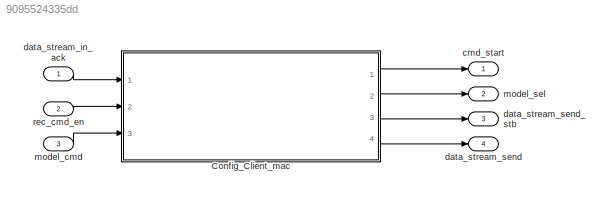
MODEL slx_9095524335dd
KIND model
CONFIG AbsTol = auto
CONFIG FixedStep = auto
CONFIG MaxStep = auto
CONFIG MinStep = auto
CONFIG RelTol = 1e-3
CONFIG SampleTimeConstraint = Unconstrained
CONFIG Solver = VariableStepAuto
CONFIG SolverMode = Auto
CONFIG SolverName = VariableStepAuto
CONFIG StartTime = 0.0
CONFIG StopTime = 10.0
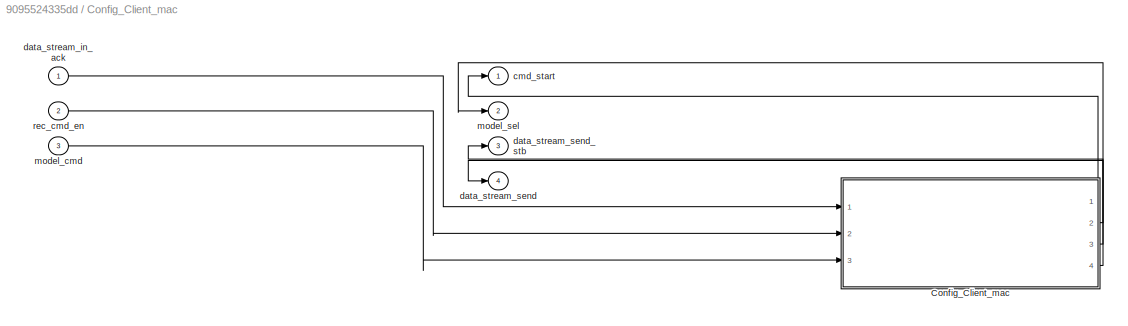
BLOCK [SubSystem] Config_Client_mac
  Ports = [3, 4]
  RequestExecContextInheritance = off
  Variant = off
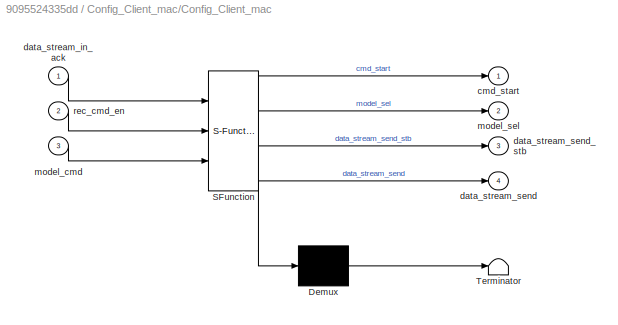
BLOCK [SubSystem] Config_Client_mac/Config_Client_mac
  ErrorFcn = Stateflow.Translate.translate
  PermitHierarchicalResolution = ExplicitOnly
  Ports = [3, 4]
  RequestExecContextInheritance = off
  SFBlockType = Chart
  TreatAsAtomicUnit = on
  Variant = off
BLOCK [Demux] Config_Client_mac/Config_Client_mac/ Demux 
  Outputs = 1
  Ports = [1, 1]
BLOCK [S-Function] Config_Client_mac/Config_Client_mac/ SFunction 
  EnableBusSupport = on
  FunctionName = sf_sfun
  PortCounts = [3 5]
  Ports = [3, 5]
  SFunctionDeploymentMode = off
  Tag = Stateflow S-Function gm_Config_Client 3
BLOCK [Terminator] Config_Client_mac/Config_Client_mac/ Terminator 
BLOCK [Outport] Config_Client_mac/Config_Client_mac/cmd_start
  IconDisplay = Port number
BLOCK [Inport] Config_Client_mac/Config_Client_mac/data_stream_in_ack
  IconDisplay = Port number
BLOCK [Outport] Config_Client_mac/Config_Client_mac/data_stream_send
  IconDisplay = Port number
  Port = 4
BLOCK [Outport] Config_Client_mac/Config_Client_mac/data_stream_send_stb
  IconDisplay = Port number
  Port = 3
BLOCK [Inport] Config_Client_mac/Config_Client_mac/model_cmd
  IconDisplay = Port number
  Port = 3
BLOCK [Outport] Config_Client_mac/Config_Client_mac/model_sel
  IconDisplay = Port number
  Port = 2
BLOCK [Inport] Config_Client_mac/Config_Client_mac/rec_cmd_en
  IconDisplay = Port number
  Port = 2
BLOCK [Outport] Config_Client_mac/cmd_start
  IconDisplay = Port number
BLOCK [Inport] Config_Client_mac/data_stream_in_ack
  IconDisplay = Port number
  SampleTime = 0
BLOCK [Outport] Config_Client_mac/data_stream_send
  IconDisplay = Port number
  Port = 4
BLOCK [Outport] Config_Client_mac/data_stream_send_stb
  IconDisplay = Port number
  Port = 3
BLOCK [Inport] Config_Client_mac/model_cmd
  IconDisplay = Port number
  Port = 3
  SampleTime = 0
BLOCK [Outport] Config_Client_mac/model_sel
  IconDisplay = Port number
  Port = 2
BLOCK [Inport] Config_Client_mac/rec_cmd_en
  IconDisplay = Port number
  Port = 2
  SampleTime = 0
BLOCK [Outport] cmd_start
  IconDisplay = Port number
BLOCK [Inport] data_stream_in_ack
  IconDisplay = Port number
  SampleTime = 0
BLOCK [Outport] data_stream_send
  IconDisplay = Port number
  Port = 4
BLOCK [Outport] data_stream_send_stb
  IconDisplay = Port number
  Port = 3
BLOCK [Inport] model_cmd
  IconDisplay = Port number
  Port = 3
  SampleTime = 0
BLOCK [Outport] model_sel
  IconDisplay = Port number
  Port = 2
BLOCK [Inport] rec_cmd_en
  IconDisplay = Port number
  Port = 2
  SampleTime = 0
LINE Config_Client_mac/Config_Client_mac:1 -> Config_Client_mac/cmd_start:1
LINE Config_Client_mac/Config_Client_mac:2 -> Config_Client_mac/model_sel:1
LINE Config_Client_mac/Config_Client_mac:3 -> Config_Client_mac/data_stream_send_stb:1
LINE Config_Client_mac/Config_Client_mac:4 -> Config_Client_mac/data_stream_send:1
LINE Config_Client_mac/data_stream_in_ack:1 -> Config_Client_mac/Config_Client_mac:1
LINE Config_Client_mac/model_cmd:1 -> Config_Client_mac/Config_Client_mac:3
LINE Config_Client_mac/rec_cmd_en:1 -> Config_Client_mac/Config_Client_mac:2
LINE Config_Client_mac:1 -> cmd_start:1
LINE Config_Client_mac:2 -> model_sel:1
LINE Config_Client_mac:3 -> data_stream_send_stb:1
LINE Config_Client_mac:4 -> data_stream_send:1
LINE data_stream_in_ack:1 -> Config_Client_mac:1
LINE model_cmd:1 -> Config_Client_mac:3
LINE rec_cmd_en:1 -> Config_Client_mac:2
CHART Config_Client_mac/Config_Client_mac states=52 transitions=157
  STATE_LABEL 'Initial\nentry: \n data_stream_send_stb = 0;\n data_stream_send = uint8(0);\n cmd_start = 0;\n model_sel = 0;\n cnt_wait = uint32(0);\n cnt_halt = int32(0);\n%2.1.2'
  STATE_LABEL 'Tran_A\nentry: \n data_stream_send_stb = 1;\n data_stream_send = 65;%A\n cnt_wait = 0;\n cnt_halt = 0;'
  STATE_LABEL 'Tran_T\nentry: \n data_stream_send_stb = 1;\n data_stream_send = 84;%T\n'
  STATE_LABEL 'Tran_Enter\nentry: data_stream_send_stb = 1;\n data_stream_send = 13;%/r'
  STATE_LABEL 'Tran_Enter_1\nentry: data_stream_send_stb = 1;\n data_stream_send = 10;%/n'
  STATE_LABEL 'send_finish\nentry: data_stream_send_stb = 0;\n data_stream_send = 0;'
  STATE_LABEL 'wait_cnt1\nentry: cnt_wait = cnt_wait + 1;\ncnt_halt = 0;\ndata_stream_send_stb = 0;\n data_stream_send = 0;'
  STATE_LABEL 'device_OK\nentry: model_sel = model_sel + 1;\n cnt_wait = uint32(0);\n cmd_start = 1;'
  STATE_LABEL 'Tran1_A\nentry: \n data_stream_send_stb = 1;\n data_stream_send = 65;%A\n cnt_wait = 0;\n cnt_halt = 0;'
  STATE_LABEL 'Tran1_Equal\nentry: \n data_stream_send_stb = 1;\n data_stream_send = 61;%=\n'
  STATE_LABEL 'Tran1_3\nentry: \n data_stream_send_stb = 1;\n data_stream_send = 51;%3\n'
  STATE_LABEL 'Tran1_Plus\nentry: \n data_stream_send_stb = 1;\n data_stream_send = 43;%+\n'
  STATE_LABEL 'Tran1_C\nentry: \n data_stream_send_stb = 1;\n data_stream_send = 67;%C\n'
  STATE_LABEL 'Tran1_W\nentry: \n data_stream_send_stb = 1;\n data_stream_send = 87;%W\n'
  STATE_LABEL 'Tran1_M\nentry: \n data_stream_send_stb = 1;\n data_stream_send = 77;%M\n'
  STATE_LABEL 'Tran1_O\nentry: \n data_stream_send_stb = 1;\n data_stream_send = 79;%O\n'
  STATE_LABEL 'Tran1_D\nentry: \n data_stream_send_stb = 1;\n data_stream_send = 68;%D\n'
  STATE_LABEL 'Tran1_E\nentry: \n data_stream_send_stb = 1;\n data_stream_send = 69;%E\n'
  STATE_LABEL 'Tran1_Enter\nentry: data_stream_send_stb = 1;\n data_stream_send = 13;%/r'
  STATE_LABEL 'Tran1_T\nentry: \n data_stream_send_stb = 1;\n data_stream_send = 84;%T\n'
  STATE_LABEL 'Tran1_Enter_1\nentry: data_stream_send_stb = 1;\n data_stream_send = 10;%/n'
  STATE_LABEL 'send_finish1\nentry: data_stream_send_stb = 0;\n data_stream_send = 0;'
  STATE_LABEL 'wait_cnt2\nentry: cnt_wait = cnt_wait + 1;\ncnt_halt = 0;\ndata_stream_send_stb = 0;\ndata_stream_send = 0;'
  STATE_LABEL 'device_OK1\nentry: model_sel = model_sel + 1;\n cnt_wait = uint32(0);\n cmd_start = 1;'
  STATE_LABEL 'Tran2_A\nentry: \n data_stream_send_stb = 1;\n data_stream_send = 65;%A\n cnt_wait = 0;\n cnt_halt = 0;'
  STATE_LABEL 'Tran2_C\nentry: \n data_stream_send_stb = 1;\n data_stream_send = 67;%C\n'
  STATE_LABEL 'Tran2_W\nentry: \n data_stream_send_stb = 1;\n data_stream_send = 87;%W\n'
  STATE_LABEL 'Tran2_T\nentry: \n data_stream_send_stb = 1;\n data_stream_send = 84;%T\n'
  STATE_LABEL 'Tran2_Plus\nentry: \n data_stream_send_stb = 1;\n data_stream_send = 43;%+\n'
  STATE_LABEL 'Tran2_J\nentry: \n data_stream_send_stb = 1;\n data_stream_send = 74;%J\n'
  STATE_LABEL 'Tran2_A1\nentry: \n data_stream_send_stb = 1;\n data_stream_send = 65;%A\n'
  STATE_LABEL 'Tran2_Equal\nentry: \n data_stream_send_stb = 1;\n data_stream_send = 61;%=\n'
  STATE_LABEL 'Tran2_Quota\nentry: \n data_stream_send_stb = 1;\n data_stream_send = 34;%"\n'
  STATE_LABEL 'Tran2_P\nentry: \n data_stream_send_stb = 1;\n data_stream_send = 80;%P\n'
  STATE_LABEL 'Tran2_U\nentry: \n data_stream_send_stb = 1;\n data_stream_send = 85;%U\n'
  STATE_LABEL 'Tran2_N\nentry: \n data_stream_send_stb = 1;\n data_stream_send = 78;%N\n'
  STATE_LABEL 'Tran2_Underline\nentry: \n data_stream_send_stb = 1;\n data_stream_send = 95;%_\n'
  STATE_LABEL 'Tran2_T1\nentry: \n data_stream_send_stb = 1;\n data_stream_send = 84;%T\n'
  STATE_LABEL 'Tran2_D\nentry: \n data_stream_send_stb = 1;\n data_stream_send = 68;%D\n'
  STATE_LABEL 'send_finish2\nentry: data_stream_send_stb = 0;\n data_stream_send = 0;'
